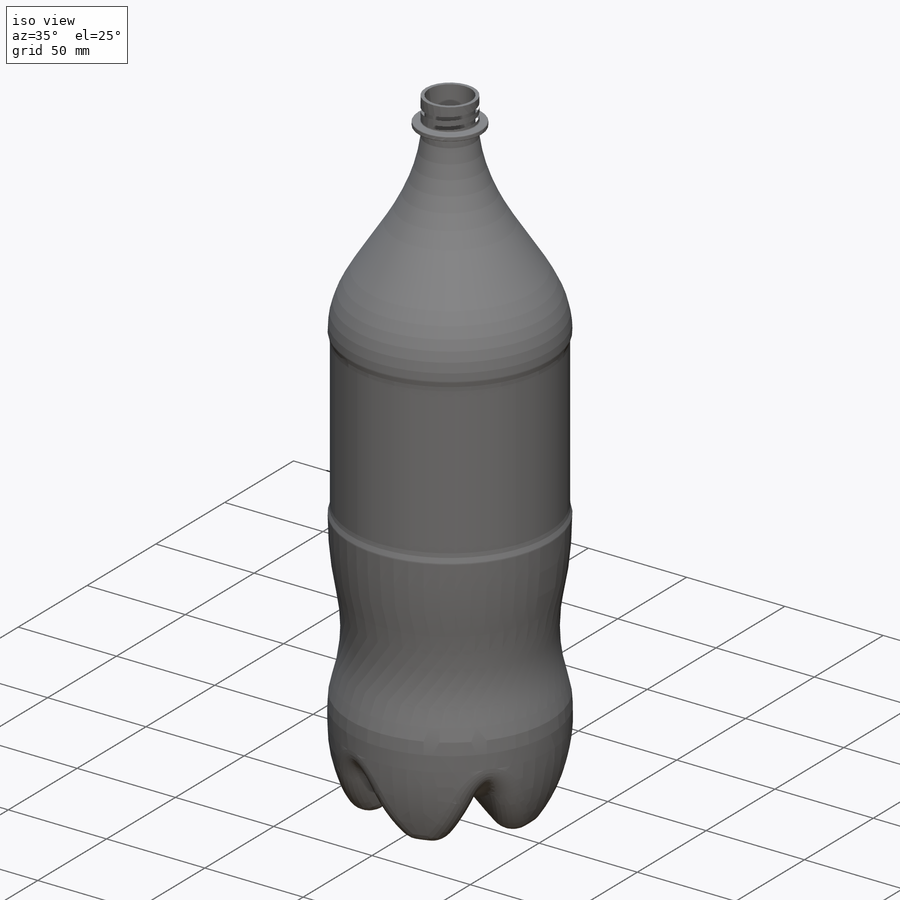
[diagram: iso view]
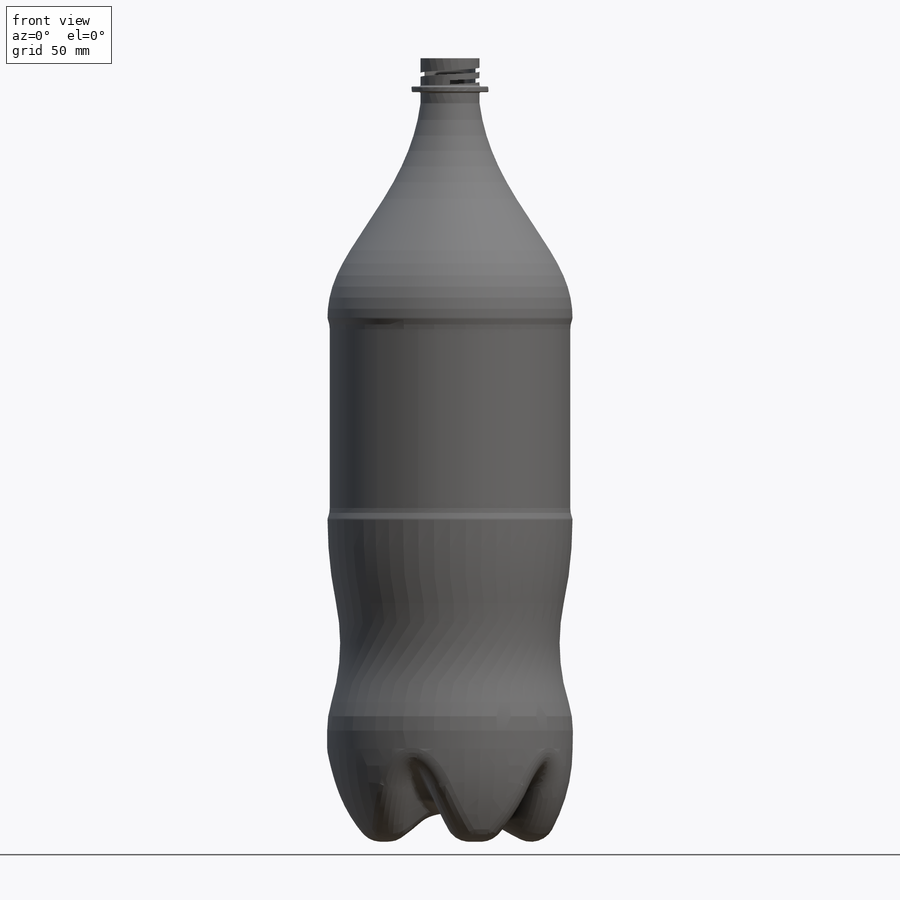
[diagram: front view]
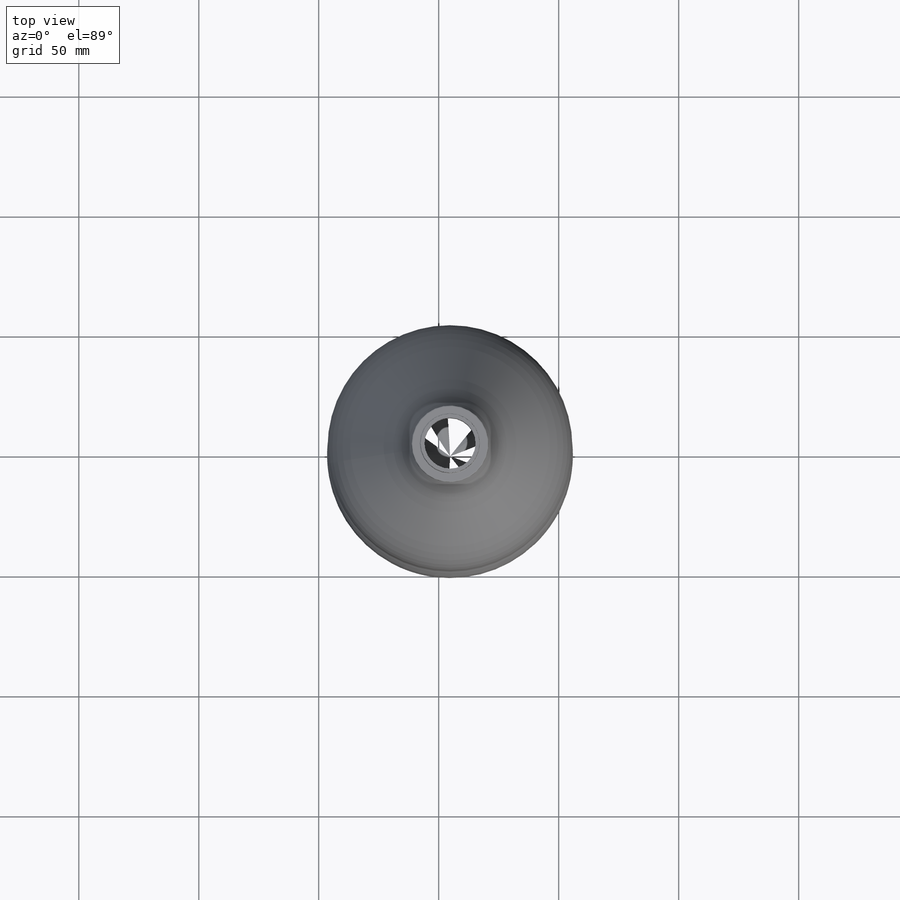
[diagram: top view]
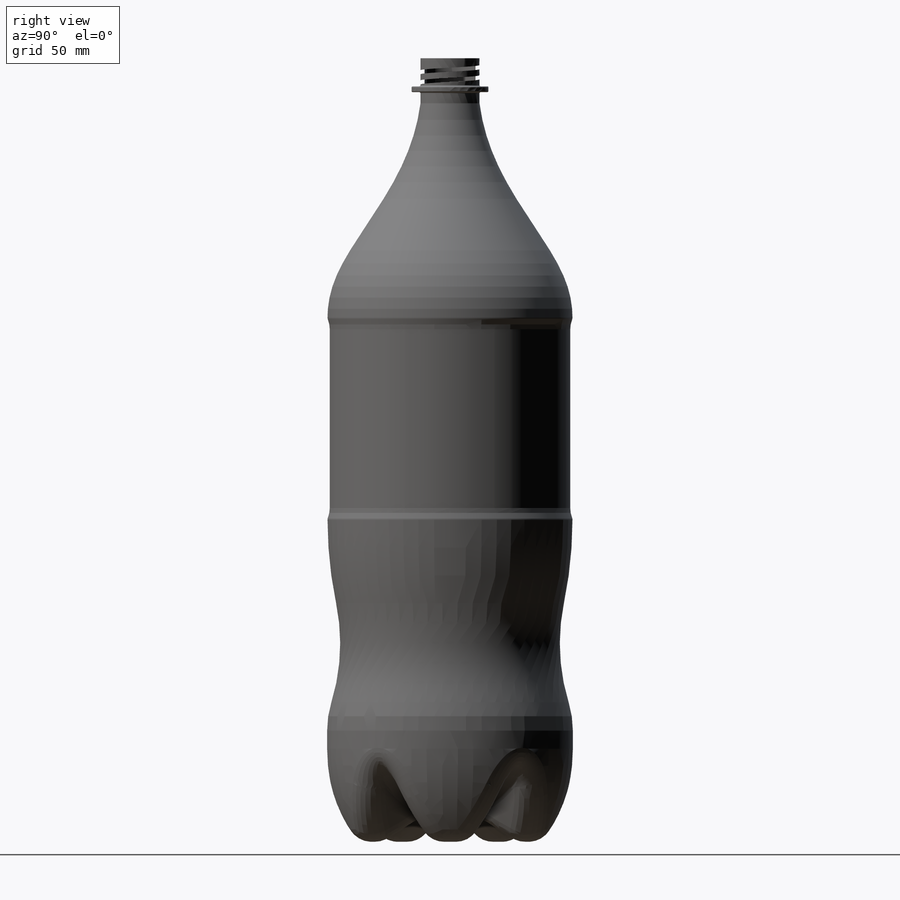
[diagram: right view]
SOLIDWORKS PART (.sldprt)
format: sldprt  version: not decoded by parser v0  size: 1,232,896 bytes
history: native  units: mm
features: plane x6, sketch x6, fillet x6, sweep x2, material x1, revolve x1, pattern_circular x1, shell x1, helix x1 (+10 scaffold rows collapsed)
feature tree (35):
  scaffold x10  (default folders/planes/origin — collapsed)
  material  "Material <not specified>"
  plane  "Ebene vorne"
  plane  "Ebene oben"
  plane  "Ebene rechts"
  sketch  "Skizze1"  dims[D1=340.0mm]
  sketch  "Skizze2"  dims[c1.D1=10.0mm c1.D2=11.7mm c1.D3=21.3mm c1.D4=24.6mm c2.D2=2.0mm c2.D3=2.0mm]
  revolve  "Rotation1"  Angle=360deg
  plane  "Ebene1"  Offset=60mm
  sketch  "Skizze7"
  plane  "Ebene3"
  sketch  "Skizze8"  dims[c1.D3=3.0mm c1.D1=~10.929075mm c2.D1=45.0deg c2.D2=20.0mm]
  sweep  "Schnitt-Austragung1"
  pattern_circular  "Kreismuster2"  Count=5 Angle=360deg
  fillet  "Verrundung1"  Radius=10mm
  fillet  "Verrundung2"  Radius=10mm
  fillet  "Verrundung3"  Radius=10mm
  fillet  "Verrundung4"  Radius=10mm
  fillet  "Verrundung5"  Radius=10mm
  fillet  "Verrundung26"  Radius=0.5mm
  shell  "Wandung2"  Thickness=1mm
  sketch  "Skizze13"  dims[c1.D1=~1.854933mm c2.D1=100.0deg c2.D2=~2.641062mm c3.D2=45.0deg c3.D3=27.4mm c3.D4=1.7mm c3.D5=1.8mm]
  plane  "Ebene5"  Offset=1.8mm
  sketch  "Skizze14"
  helix  "Spirale/Helix1"  Pitch=7.42315mm
  sweep  "Austragung1"
decode coverage: 14 of 18 modeling features carry decoded parameters
note: ~ marks probable driven/reference dimensions
note: suppression state not decoded; provenance and decode notes live in map.json
